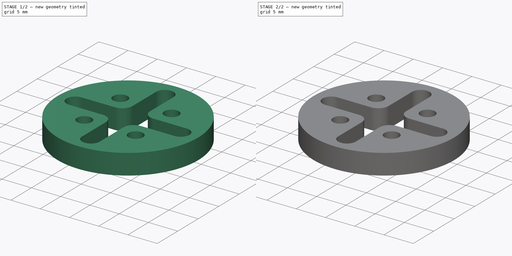
[diagram: build sequence overview — one tinted view per stage of 2, left to right]
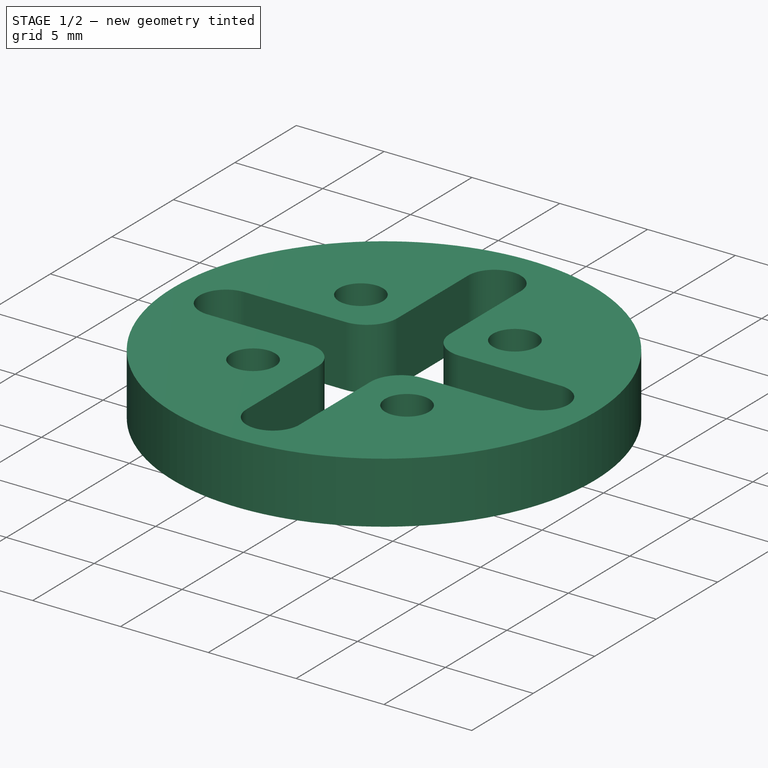
[diagram: stage 1 of 2 — iso view after this stage's code; geometry added in this stage tinted green]
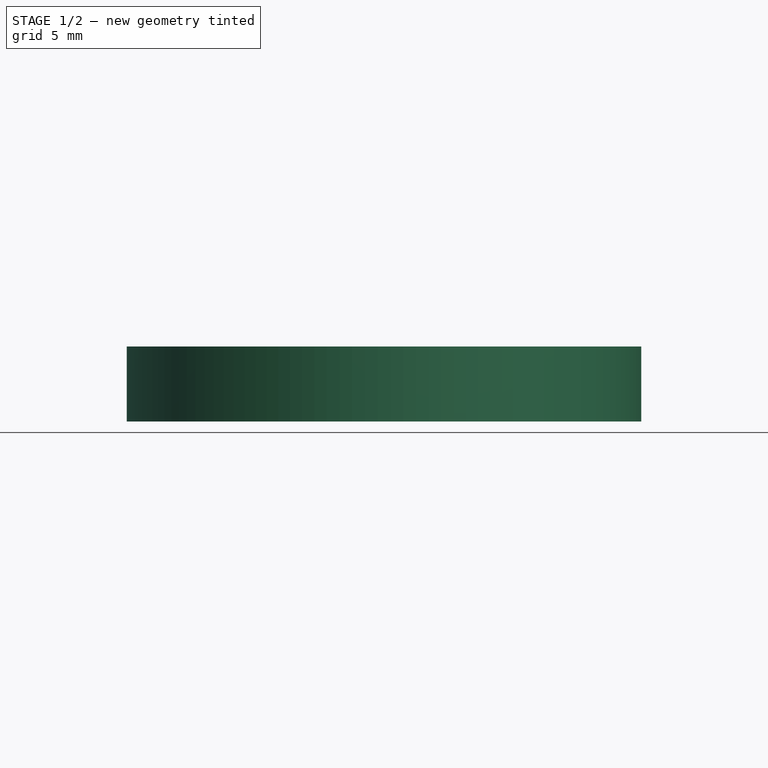
[diagram: stage 1 of 2 — front view after this stage's code; geometry added in this stage tinted green]
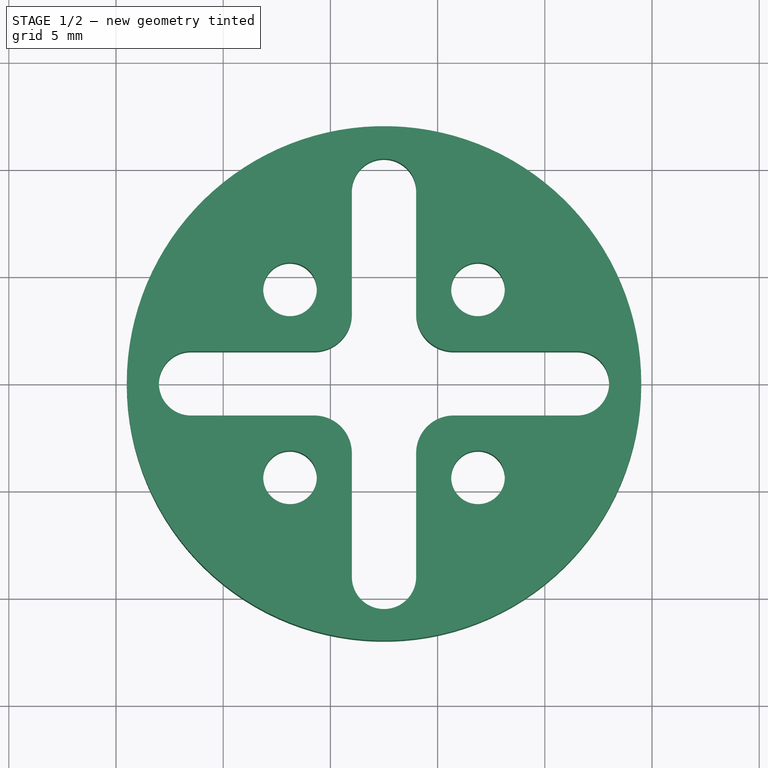
[diagram: stage 1 of 2 — top view after this stage's code; geometry added in this stage tinted green]
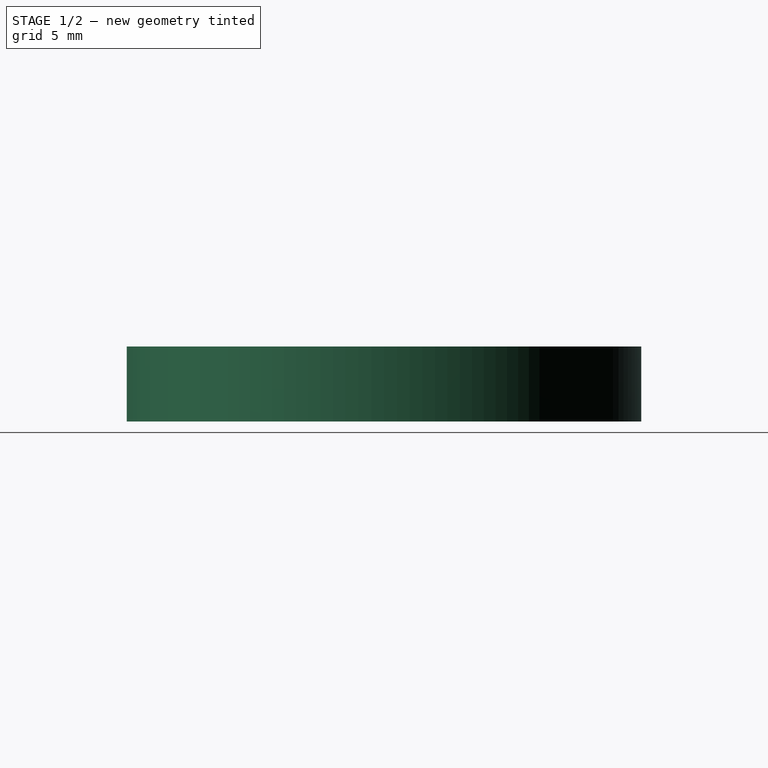
[diagram: stage 1 of 2 — right view after this stage's code; geometry added in this stage tinted green]
FCSTD DOCUMENT  (FreeCAD 0.16R4928 (Git))
Label: trasher_micro_motor_arm
License: All rights reserved
LicenseURL: http://en.wikipedia.org/wiki/All_rights_reserved
objects: Sketcher::SketchObject×2, PartDesign::Pocket×2, Part::Cylinder×1, Part::Feature×1
note: 8 computed .brp shape members not serialized (recipe doc carries the construction recipe); baked Part::Feature solids carry a one-line shape summary decoded from their .brp

FEATURE [Part::Cylinder] Cylinder002
  Angle = 360
  Height = 3.5
  Placement = pos=(-2.5,0,0) rot=(0,0,1;0rad)
  Radius = 12
FEATURE [Part::Feature] Cut002
  shape: bbox 81.98 x 21.3 x 8 mm, 1016 faces (baked)
FEATURE [Sketcher::SketchObject] Sketch
  Placement = pos=(-2.5,0,3.5) rot=(0,0,1;0rad)
  Support = -> Cylinder002 [Face2]
  sketch-geometry (23):
    g0: Circle [constr] CenterX=0 CenterY=0 CenterZ=0 NormalX=0 NormalY=0 NormalZ=1 Radius=6.2
    g1: LineSegment [constr] StartX=-5.23479 StartY=-5.23479 StartZ=0 EndX=5.65156 EndY=5.65156 EndZ=0
    g2: LineSegment [constr] StartX=-5.31763 StartY=5.31763 StartZ=0 EndX=5.49515 EndY=-5.49515 EndZ=0
    g3: Circle CenterX=4.38406 CenterY=4.38406 CenterZ=0 NormalX=0 NormalY=0 NormalZ=1 Radius=1.25
    g4: Circle CenterX=4.38406 CenterY=-4.38406 CenterZ=0 NormalX=0 NormalY=0 NormalZ=1 Radius=1.25
    g5: Circle CenterX=-4.38406 CenterY=-4.38406 CenterZ=0 NormalX=0 NormalY=0 NormalZ=1 Radius=1.25
    g6: Circle CenterX=-4.38406 CenterY=4.38406 CenterZ=0 NormalX=0 NormalY=0 NormalZ=1 Radius=1.25
    g7: ArcOfCircle CenterX=0 CenterY=8.97979 CenterZ=0 NormalX=0 NormalY=0 NormalZ=1 Radius=1.5 StartAngle=0 EndAngle=3.14159
    g8: ArcOfCircle CenterX=0 CenterY=-9.02883 CenterZ=0 NormalX=0 NormalY=0 NormalZ=1 Radius=1.5 StartAngle=3.14159 EndAngle=6.28319
    g9: LineSegment StartX=-1.5 StartY=8.97979 StartZ=0 EndX=-1.5 EndY=3.25 EndZ=0
    g10: LineSegment StartX=1.5 StartY=8.97979 StartZ=0 EndX=1.5 EndY=3.25 EndZ=0
    g11: ArcOfCircle CenterX=9.00001 CenterY=0 CenterZ=0 NormalX=0 NormalY=0 NormalZ=1 Radius=1.5 StartAngle=4.71239 EndAngle=7.85398
    g12: ArcOfCircle CenterX=-8.99961 CenterY=0 CenterZ=0 NormalX=0 NormalY=0 NormalZ=1 Radius=1.5 StartAngle=1.5708 EndAngle=4.71239
    g13: LineSegment StartX=9.00001 StartY=1.5 StartZ=0 EndX=3.25 EndY=1.5 EndZ=0
    g14: LineSegment StartX=9.00001 StartY=-1.5 StartZ=0 EndX=3.25 EndY=-1.5 EndZ=0
    g15: LineSegment StartX=-3.25 StartY=-1.5 StartZ=0 EndX=-8.99961 EndY=-1.5 EndZ=0
    g16: LineSegment StartX=-3.25 StartY=1.5 StartZ=0 EndX=-8.99961 EndY=1.5 EndZ=0
    g17: LineSegment StartX=1.5 StartY=-3.25 StartZ=0 EndX=1.5 EndY=-9.02883 EndZ=0
    g18: LineSegment StartX=-1.5 StartY=-3.25 StartZ=0 EndX=-1.5 EndY=-9.02883 EndZ=0
    g19: ArcOfCircle CenterX=-3.25 CenterY=3.25 CenterZ=0 NormalX=0 NormalY=0 NormalZ=1 Radius=1.75 StartAngle=4.71239 EndAngle=6.28319
    g20: ArcOfCircle CenterX=3.25 CenterY=3.25 CenterZ=0 NormalX=0 NormalY=0 NormalZ=1 Radius=1.75 StartAngle=3.14159 EndAngle=4.71239
    g21: ArcOfCircle CenterX=3.25 CenterY=-3.25 CenterZ=0 NormalX=0 NormalY=0 NormalZ=1 Radius=1.75 StartAngle=1.5708 EndAngle=3.14159
    g22: ArcOfCircle CenterX=-3.25 CenterY=-3.25 CenterZ=0 NormalX=0 NormalY=0 NormalZ=1 Radius=1.75 StartAngle=0 EndAngle=1.5708
  constraints (50):
    c: Coincident(g0,g-1)
    c: Radius(g0) = 6.2
    c: Angle(g-1,g1) = 0.785398
    c: PointOnObject(g-1,g1)
    c: PointOnObject(g-1,g2)
    c: Angle(g2,g-1) = 0.785398
    c: PointOnObject(g3,g0)
    c: PointOnObject(g3,g1)
    c: Radius(g3) = 1.25
    c: Radius(g4) = 1.25
    c: PointOnObject(g5,g0)
    c: Radius(g5) = 1.25
    c: PointOnObject(g6,g0)
    c: Radius(g6) = 1.25
    c: PointOnObject(g4,g0)
    c: PointOnObject(g4,g2)
    c: PointOnObject(g5,g1)
    c: PointOnObject(g6,g2)
    c: Tangent(g7,g10) = 1.5708
    c: Tangent(g7,g9) = -1.5708
    c: Tangent(g18,g8) = -1.5708
    c: Tangent(g17,g8) = 1.5708
    c: Vertical(g9)
    c: Equal(g7,g8)
    c: DistanceX(g7,g7) = 3
    c: Tangent(g11,g14) = 1.5708
    c: Tangent(g11,g13) = -1.5708
    c: Tangent(g16,g12) = -1.5708
    c: Tangent(g15,g12) = 1.5708
    c: Horizontal(g13)
    c: Equal(g11,g12)
    c: DistanceY(g12,g12) = -3
    c: PointOnObject(g12,g-1)
    c: Tangent(g14,g15)
    c: Tangent(g13,g16)
    c: Tangent(g10,g17)
    c: Tangent(g9,g18)
    c: Tangent(g9,g19) = 1.5708
    c: Tangent(g16,g19) = 1.5708
    c: Tangent(g10,g20) = -1.5708
    c: Tangent(g13,g20) = 1.5708
    c: Tangent(g14,g21) = -1.5708
    c: Tangent(g17,g21) = -1.5708
    c: Tangent(g15,g22) = -1.5708
    c: Tangent(g18,g22) = 1.5708
    c: Radius(g19) = 1.75
    c: PointOnObject(g7,g-2)
    c: Radius(g20) = 1.75
    c: Equal(g20,g21)
    c: Equal(g20,g22)
FEATURE [PartDesign::Pocket] Pocket
  Length = 5
  Placement = pos=(-2.5,0,0) rot=(0,0,1;0rad)
  Sketch = -> Sketch
  Type = 0
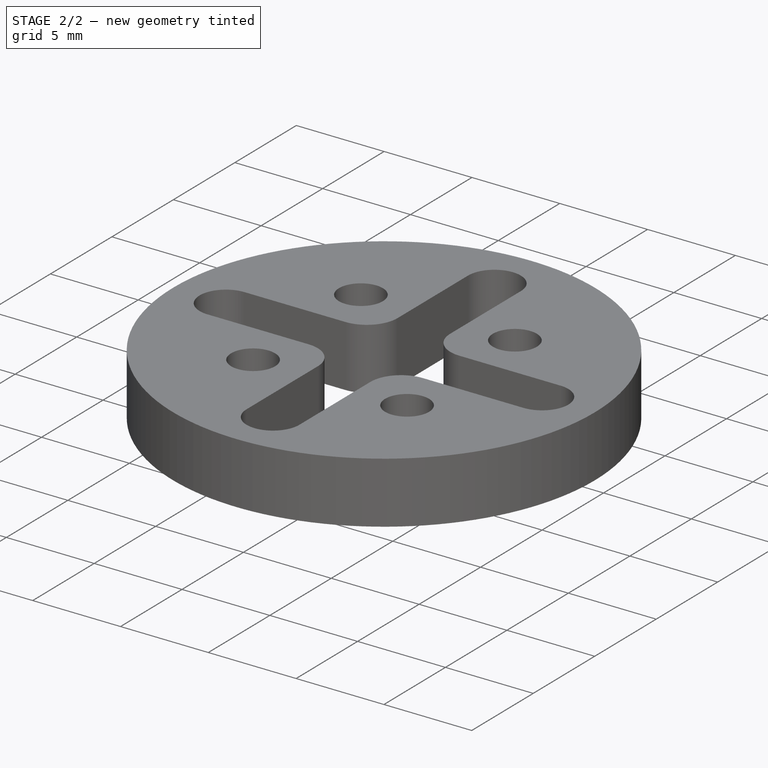
[diagram: stage 2 of 2 — iso view after this stage's code; geometry added in this stage tinted green]
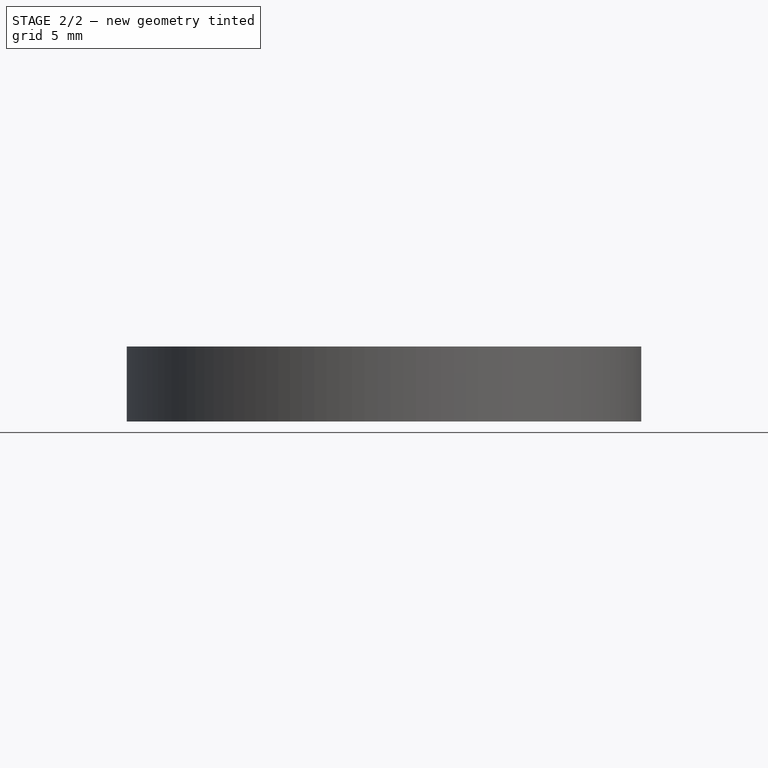
[diagram: stage 2 of 2 — front view after this stage's code; geometry added in this stage tinted green]
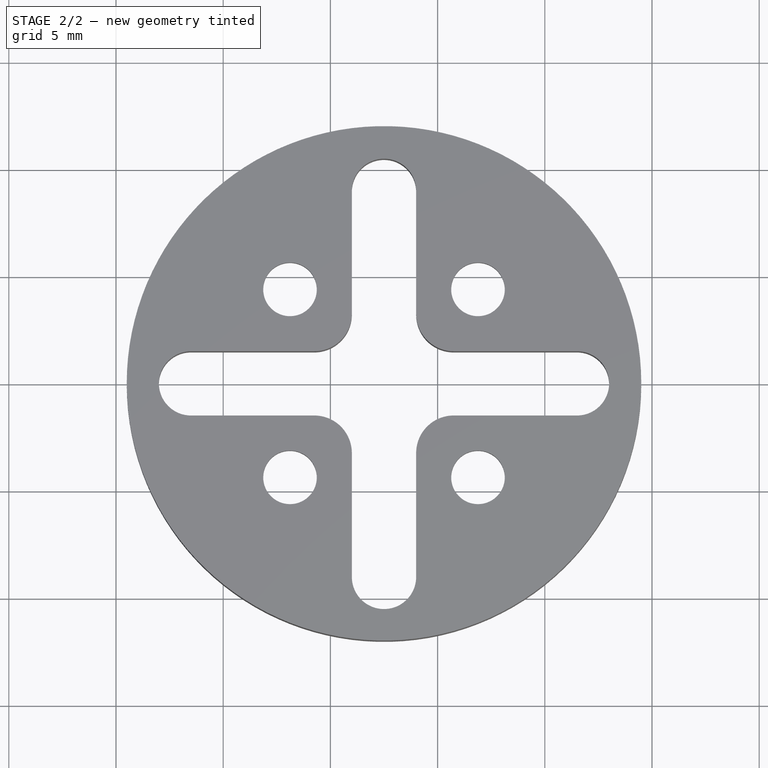
[diagram: stage 2 of 2 — top view after this stage's code; geometry added in this stage tinted green]
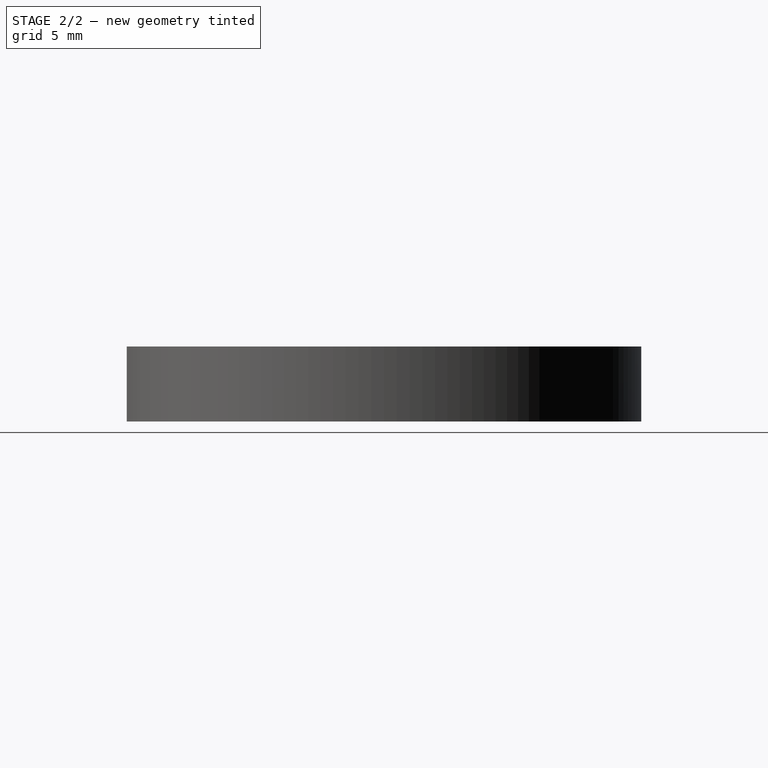
[diagram: stage 2 of 2 — right view after this stage's code; geometry added in this stage tinted green]
FEATURE [Sketcher::SketchObject] Sketch001
  Placement = pos=(-2.5,0,0) rot=(1,0,0;3.14159rad)
  Support = -> Pocket [Face3]
  sketch-geometry (7):
    g0: Circle [constr] CenterX=0 CenterY=0 CenterZ=0 NormalX=0 NormalY=0 NormalZ=1 Radius=6.2
    g1: LineSegment [constr] StartX=-5.23479 StartY=-5.23479 StartZ=0 EndX=5.65156 EndY=5.65156 EndZ=0
    g2: LineSegment [constr] StartX=-5.31771 StartY=5.31771 StartZ=0 EndX=5.49501 EndY=-5.49501 EndZ=0
    g3: Circle CenterX=4.38406 CenterY=4.38406 CenterZ=0 NormalX=0 NormalY=0 NormalZ=1 Radius=2
    g4: Circle CenterX=4.38406 CenterY=-4.38406 CenterZ=0 NormalX=0 NormalY=0 NormalZ=1 Radius=2
    g5: Circle CenterX=-4.38406 CenterY=-4.38406 CenterZ=0 NormalX=0 NormalY=0 NormalZ=1 Radius=2
    g6: Circle CenterX=-4.38406 CenterY=4.38406 CenterZ=0 NormalX=0 NormalY=0 NormalZ=1 Radius=2
  constraints (18):
    c: Coincident(g0,g-1)
    c: Radius(g0) = 6.2
    c: Angle(g-1,g1) = 0.785398
    c: PointOnObject(g-1,g1)
    c: PointOnObject(g-1,g2)
    c: Angle(g2,g-1) = 0.785398
    c: PointOnObject(g3,g0)
    c: PointOnObject(g3,g1)
    c: Radius(g3) = 2
    c: Radius(g4) = 2
    c: PointOnObject(g5,g0)
    c: Radius(g5) = 2
    c: PointOnObject(g6,g0)
    c: Radius(g6) = 2
    c: PointOnObject(g4,g0)
    c: PointOnObject(g4,g2)
    c: PointOnObject(g5,g1)
    c: PointOnObject(g6,g2)
FEATURE [PartDesign::Pocket] Pocket001
  Length = 2
  Placement = pos=(-2.5,0,0) rot=(0,0,1;0rad)
  Sketch = -> Sketch001
  Type = 0
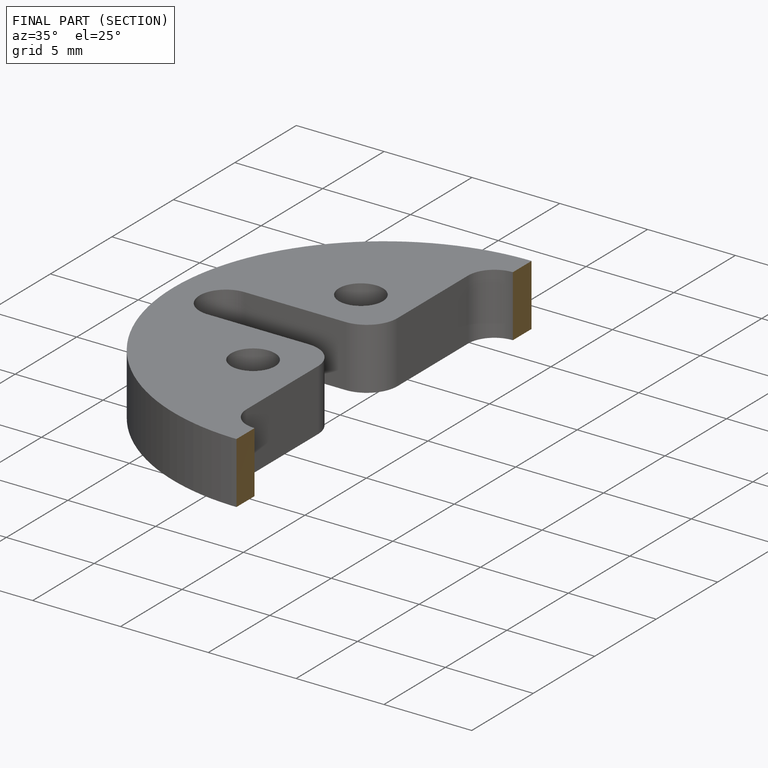
[diagram: finished part — half-section view (interior)]
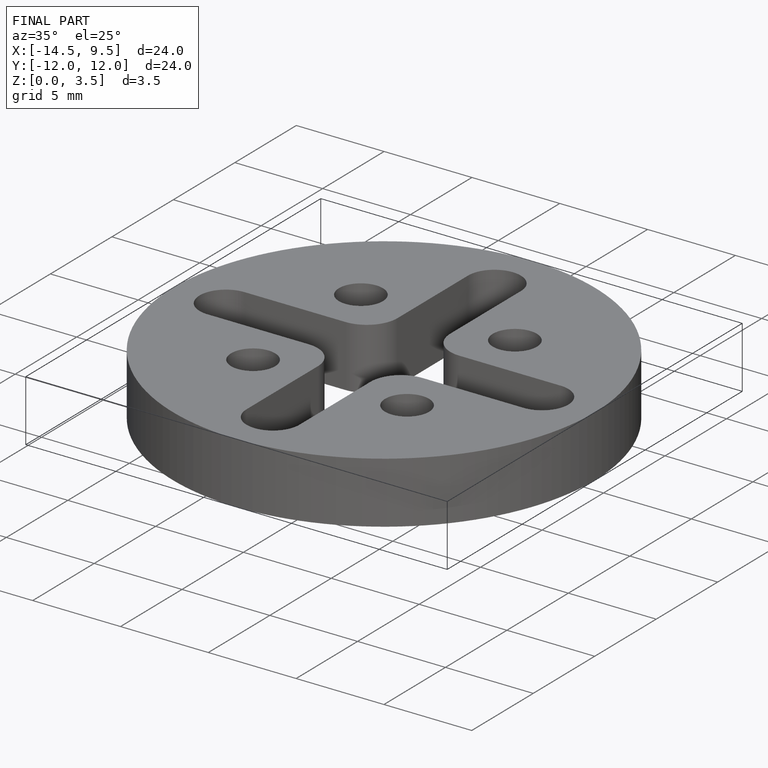
[diagram: finished part — iso view with bounding-box wireframe]
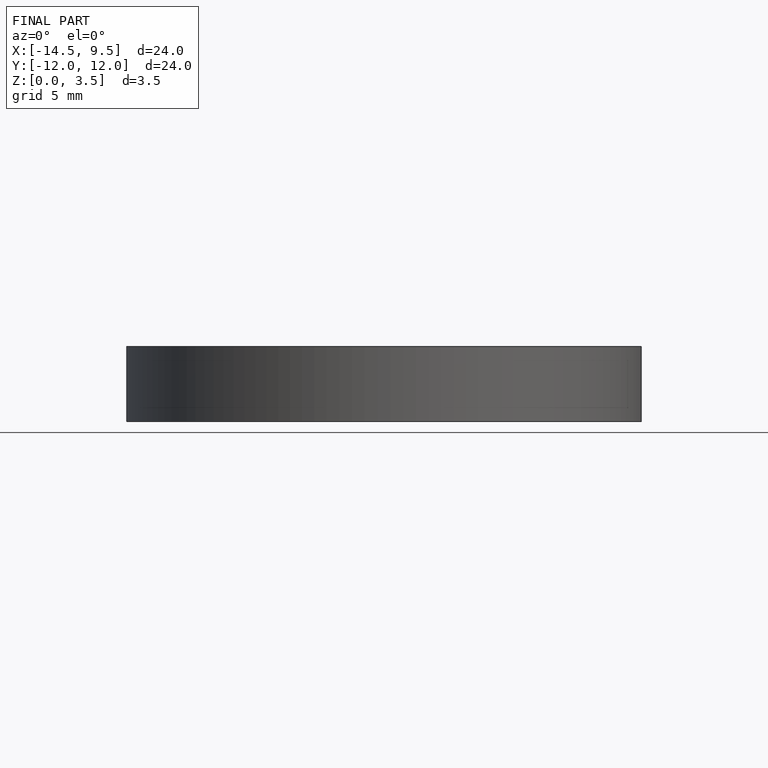
[diagram: finished part — front view with bounding-box wireframe]
